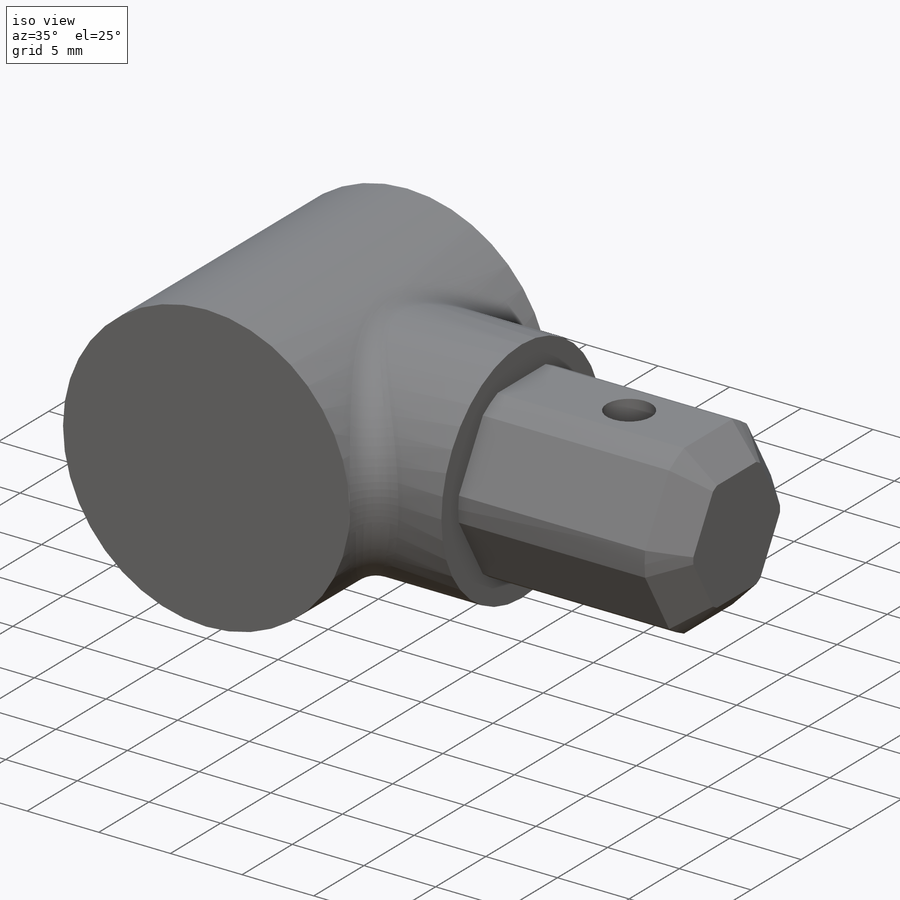
[diagram: iso view]
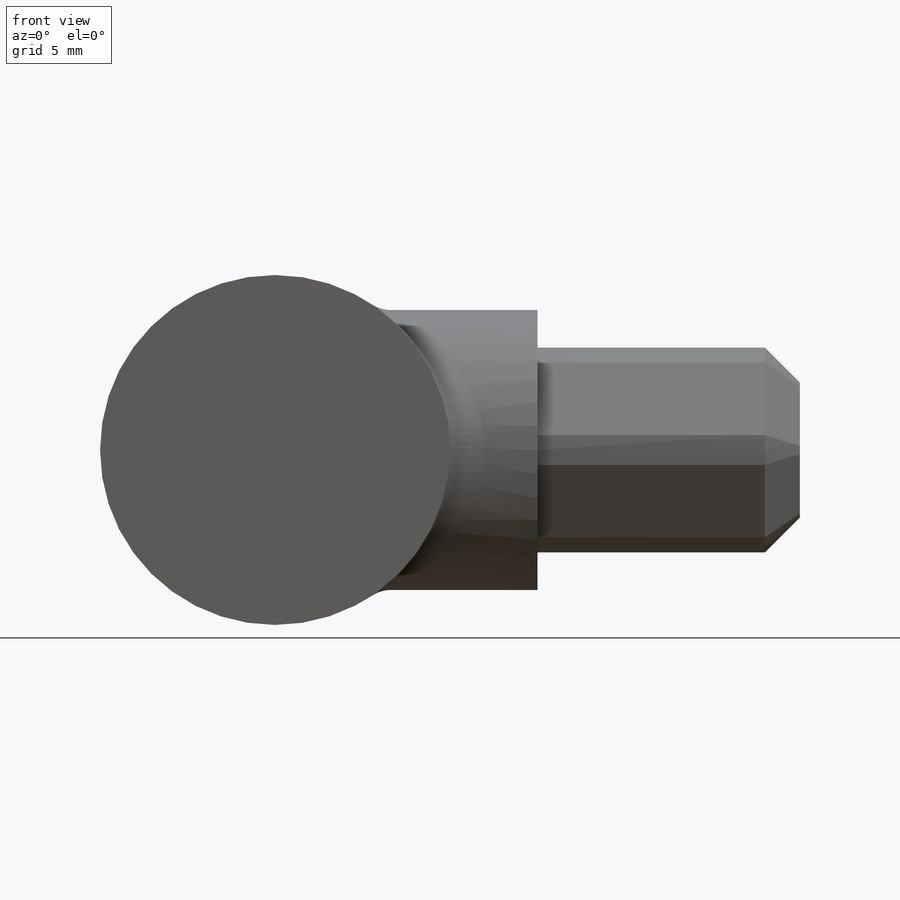
[diagram: front view]
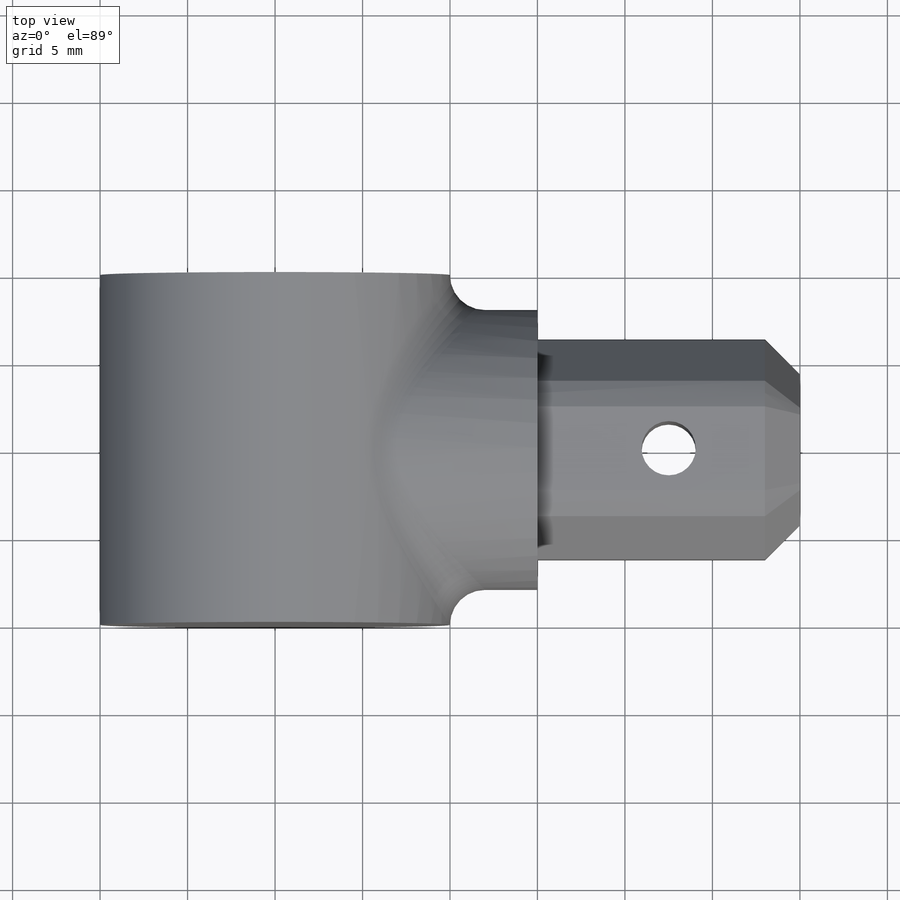
[diagram: top view]
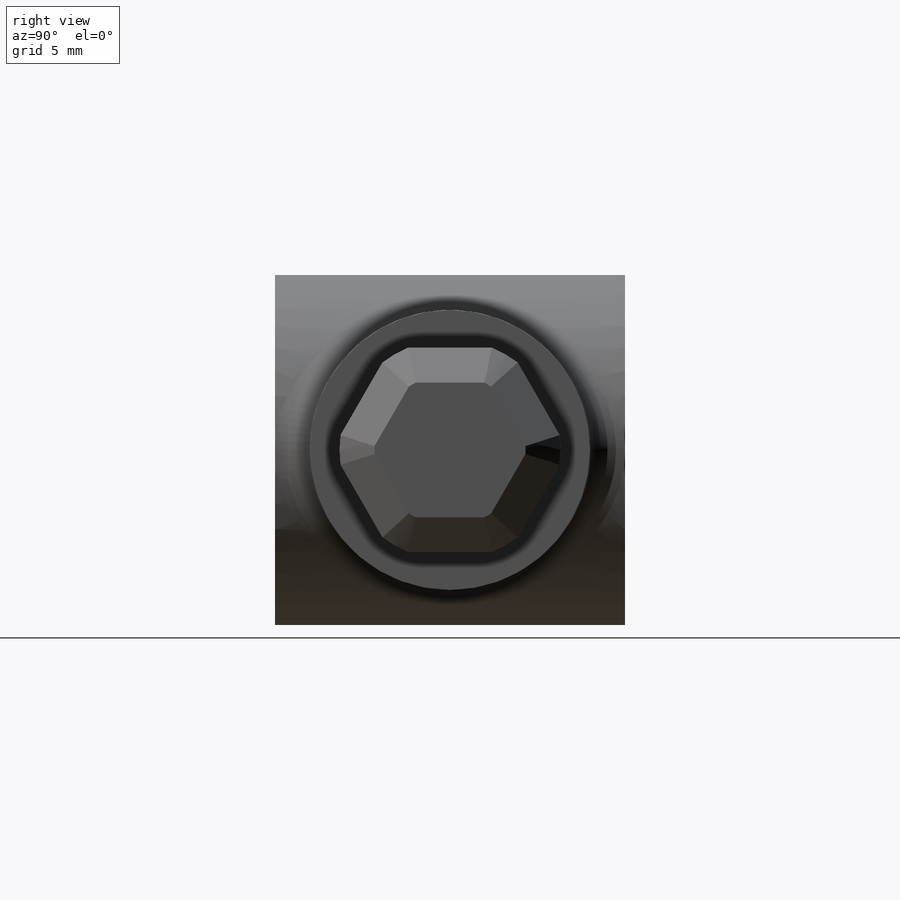
[diagram: right view]
SOLIDWORKS PART (.sldprt)
format: sldprt  version: not decoded by parser v0  size: 283,648 bytes
history: native  units: mm
features: sketch x7, cut_extrude x4, extrude x3, chamfer x2, material x1, fillet x1 (+13 scaffold rows collapsed)
feature tree (31):
  scaffold x13  (default folders/planes/origin — collapsed)
  material  "Material <not specified>"
  sketch  "Sketch2"  dims[D1=20.0mm]
  extrude  "Boss-Extrude1"  Depth=20mm
  sketch  "Sketch3"  dims[D1=~13.819487mm]
  extrude  "Boss-Extrude2"  Depth=15mm
  sketch  "Sketch4"  dims[D1=12.64mm D2=11.7mm]
  extrude  "Boss-Extrude3"  Depth=15mm
  fillet  "Fillet1"  Radius=2mm
  chamfer  "Chamfer1"  Distance=2mm Angle=45deg
  sketch  "Sketch5"  dims[D1=3.1mm D2=7.5mm]
  cut_extrude  "Cut-Extrude1"  [1 undecoded]
  sketch  "Sketch6"  dims[D1=7.5mm]
  cut_extrude  "Cut-Extrude2"  [1 undecoded]
  sketch  "Sketch7"  dims[D1=13.0mm]
  cut_extrude  "Cut-Extrude3"  Depth=6mm
  sketch  "Sketch8"
  cut_extrude  "Cut-Extrude4"  Depth=6mm
  chamfer  "Chamfer2"  Distance=0.5mm Angle=45deg
decode coverage: 14 of 17 modeling features carry decoded parameters
note: ~ marks probable driven/reference dimensions
note: 2 parameter values undecoded
note: suppression state not decoded; provenance and decode notes live in map.json
